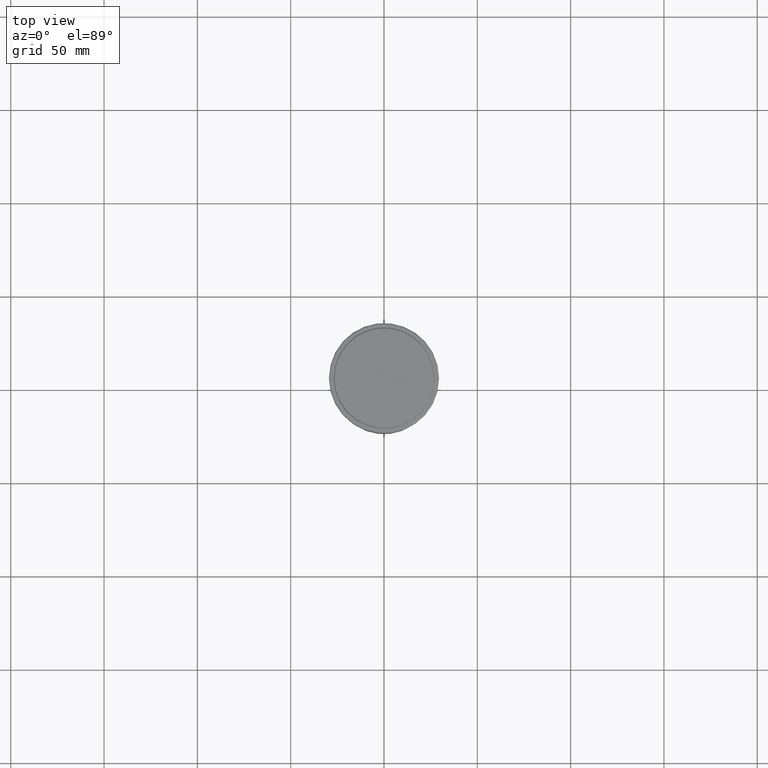
[diagram: clean part render]
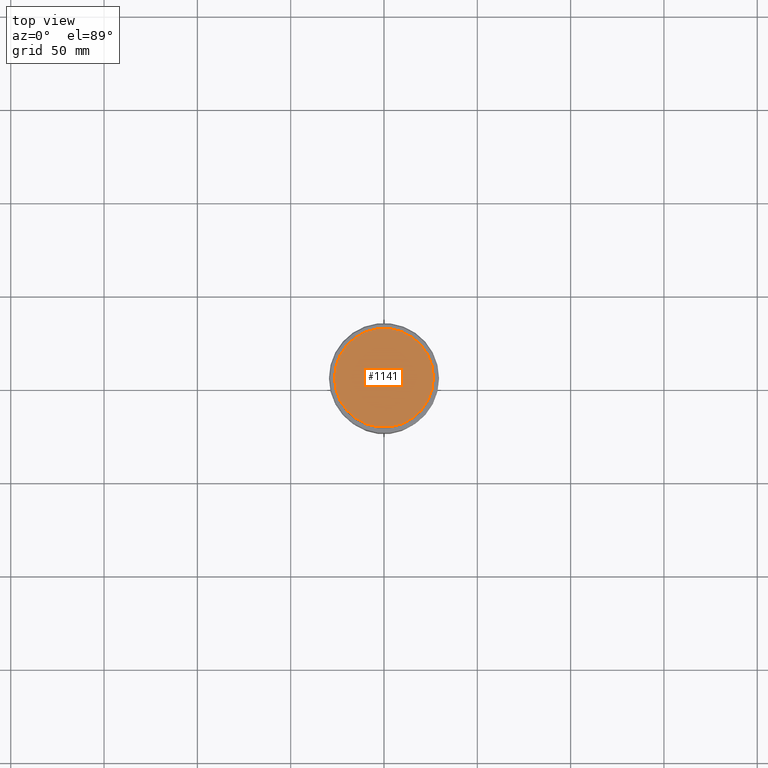
[diagram: same view with one face highlighted and labeled with its STEP entity id]
A machine part, top view. The second image highlights one B-rep face of the part: STEP entity #1141.
In plain terms, the highlighted planar face has unit normal (0, -0, 1).
Its self-contained STEP definition (entity closure, byte-faithful):
#77 = CARTESIAN_POINT ( 'NONE',  ( 26.49999999999996803, 3.275930187719167974E-15, 0.000000000000000000 ) ) ;
#87 = DIRECTION ( 'NONE',  ( 1.000000000000000000, 0.000000000000000000, 0.000000000000000000 ) ) ;
#142 = VERTEX_POINT ( 'NONE', #77 ) ;
#196 = VERTEX_POINT ( 'NONE', #1083 ) ;
#199 = CARTESIAN_POINT ( 'NONE',  ( 0.000000000000000000, 0.000000000000000000, 0.000000000000000000 ) ) ;
#268 = EDGE_CURVE ( 'NONE', #196, #142, #684, .T. ) ;
#298 = AXIS2_PLACEMENT_3D ( 'NONE', #1086, #858, #87 ) ;
#504 = EDGE_CURVE ( 'NONE', #142, #196, #1174, .T. ) ;
#521 = DIRECTION ( 'NONE',  ( 1.000000000000000000, 0.000000000000000000, 0.000000000000000000 ) ) ;
#576 = AXIS2_PLACEMENT_3D ( 'NONE', #1054, #1138, #521 ) ;
#684 = CIRCLE ( 'NONE', #1404, 26.49999999999996803 ) ;
#830 = ORIENTED_EDGE ( 'NONE', *, *, #504, .T. ) ;
#845 = EDGE_LOOP ( 'NONE', ( #1411, #830 ) ) ;
#858 = DIRECTION ( 'NONE',  ( 0.000000000000000000, -0.000000000000000000, 1.000000000000000000 ) ) ;
#877 = DIRECTION ( 'NONE',  ( 1.000000000000000000, 0.000000000000000000, 0.000000000000000000 ) ) ;
#1054 = CARTESIAN_POINT ( 'NONE',  ( 0.000000000000000000, 0.000000000000000000, 0.000000000000000000 ) ) ;
#1061 = DIRECTION ( 'NONE',  ( -0.000000000000000000, -0.000000000000000000, 1.000000000000000000 ) ) ;
#1083 = CARTESIAN_POINT ( 'NONE',  ( -26.49999999999996803, 0.000000000000000000, 0.000000000000000000 ) ) ;
#1086 = CARTESIAN_POINT ( 'NONE',  ( 0.000000000000000000, 0.000000000000000000, 0.000000000000000000 ) ) ;
#1138 = DIRECTION ( 'NONE',  ( -0.000000000000000000, -0.000000000000000000, 1.000000000000000000 ) ) ;
#1141 = ADVANCED_FACE ( 'NONE', ( #1294 ), #1399, .T. ) ;
#1174 = CIRCLE ( 'NONE', #576, 26.49999999999996803 ) ;
#1294 = FACE_OUTER_BOUND ( 'NONE', #845, .T. ) ;
#1399 = PLANE ( 'NONE',  #298 ) ;
#1404 = AXIS2_PLACEMENT_3D ( 'NONE', #199, #1061, #877 ) ;
#1411 = ORIENTED_EDGE ( 'NONE', *, *, #268, .T. ) ;